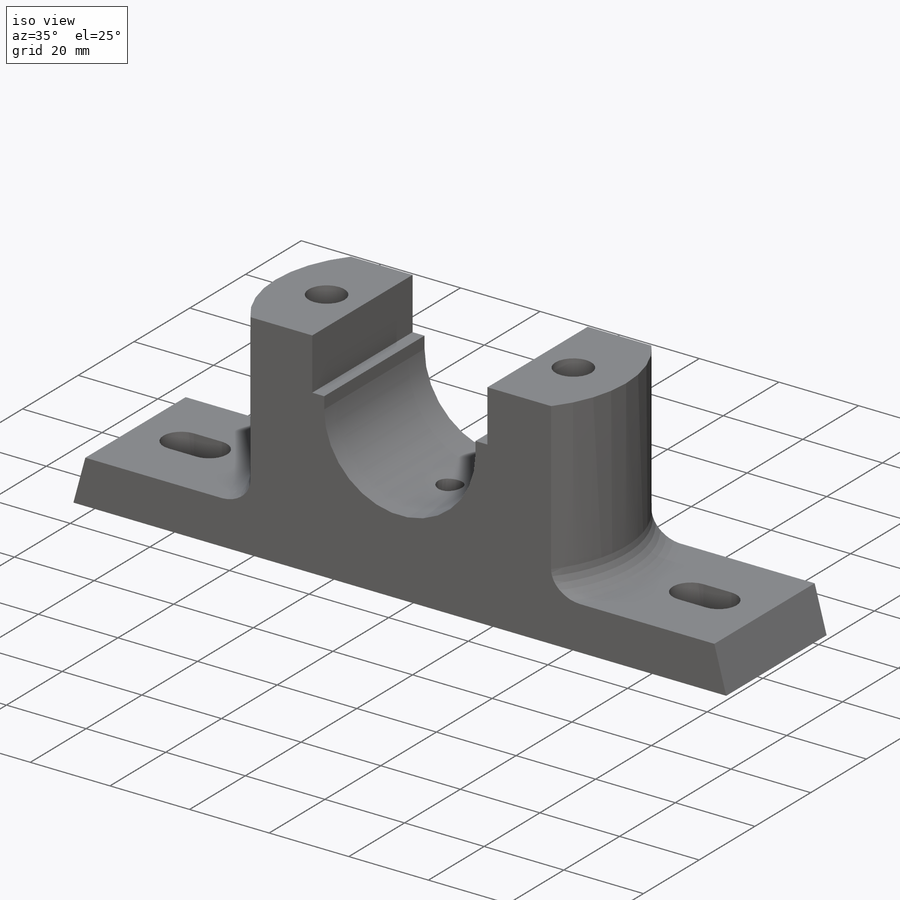
[diagram: iso view]
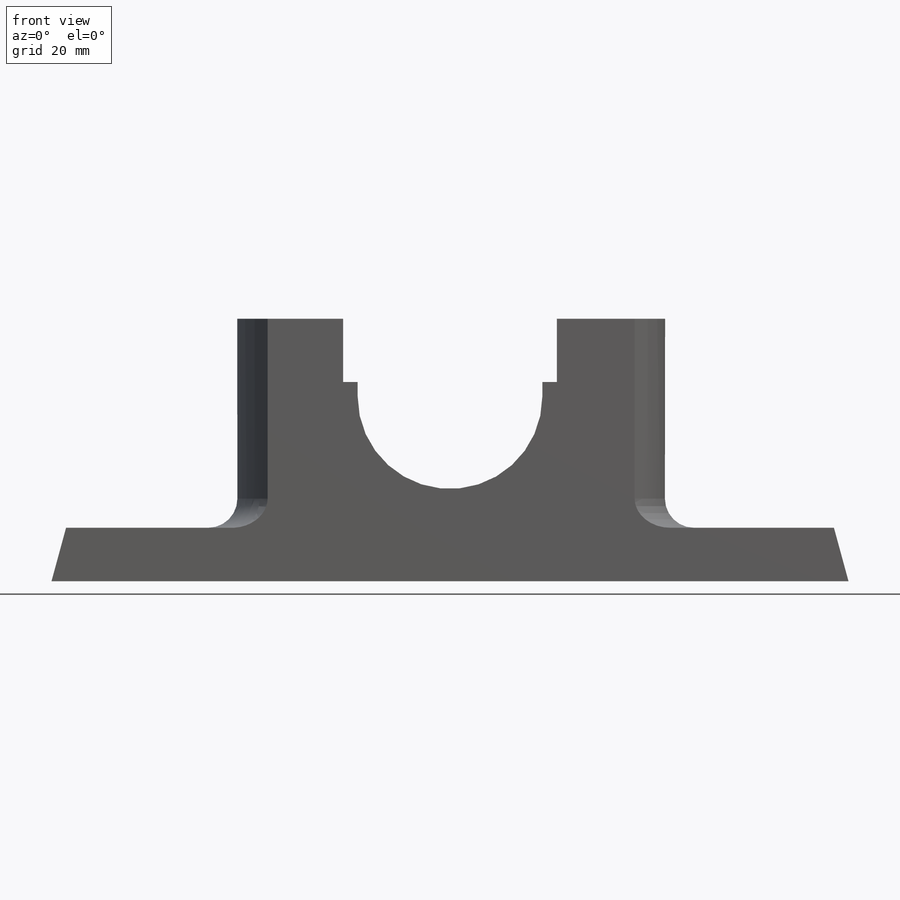
[diagram: front view]
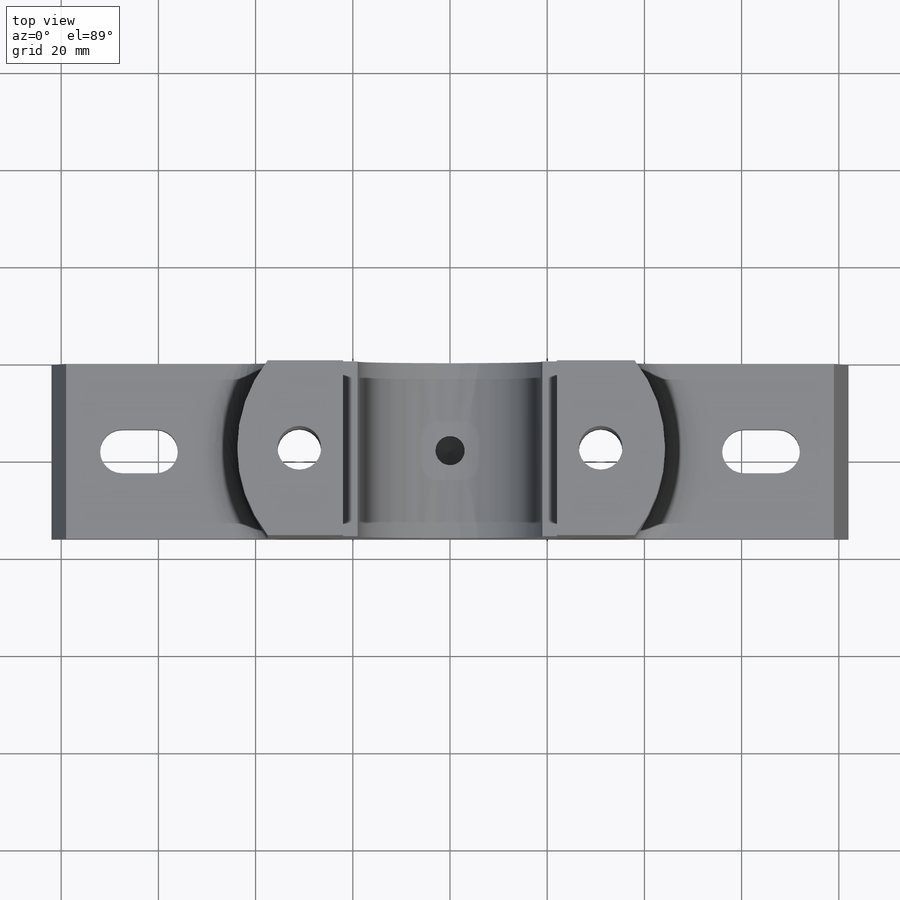
[diagram: top view]
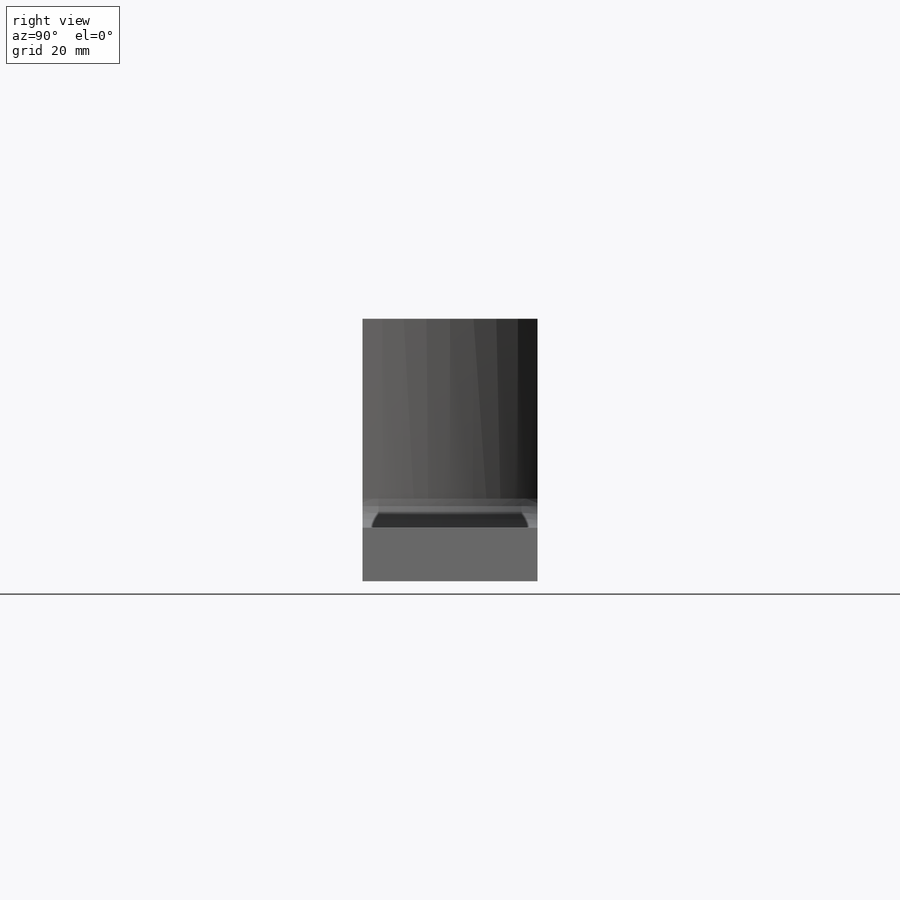
[diagram: right view]
SOLIDWORKS PART (.sldprt)
format: sldprt  version: not decoded by parser v0  size: 334,848 bytes
history: native  units: mm
features: sketch x9, cut_extrude x4, fillet x2, hole x2, mirror x2, material x1, extrude x1 (+12 scaffold rows collapsed)
feature tree (33):
  scaffold x12  (default folders/planes/origin — collapsed)
  material  "Material <not specified>"
  sketch  "Sketch1"  dims[c1.D1=~8.763465mm c1.D8=19.0mm c1.D7=19.0mm c2.D1=90.0deg c3.D1=50.0mm c3.D2=3.0mm c3.D3=43.0mm c3.D4=3.0mm c3.D5=82.0mm c3.D6=11.0mm c3.D7=16.0mm c3.D8=~22.88295mm c3.D9=~22.88295mm c4.D8=16.0mm c4.D7=13.0mm c5.D8=~22.88295mm c5.D2=13.0mm c5.D7=10.0mm c6.D2=13.0mm c6.D7=16.0mm c6.D5=164.0mm c6.D8=16.0mm c6.D9=44.0mm]
  extrude  "Boss-Extrude2"  Depth=36mm
  sketch  "Sketch11"  dims[D1=29.0mm]
  cut_extrude  "Cut-Extrude1"  Depth=43mm
  fillet  "Fillet1"  Radius=6mm
  sketch  "Sketch12"  dims[D1=29.0mm]
  cut_extrude  "Cut-Extrude2"  Depth=43mm
  fillet  "Fillet2"  Radius=6mm
  hole  "Ø6.0mm Dowel Hole1"  Diameter=6mm Depth=6mm
  sketch  "3DSketch1"  dims[D1=0.0mm D2=18.0mm]
  sketch  "Sketch14"  dims[hole-wizard template sketch: 47 standard entries collapsed; hole parameters kept: c15.Hole Depth=6.0mm c15.D3=~14.816244mm c15.Drill Angle=118.0deg]
  hole  "Ø6.0mm Dowel Hole3"  Diameter=9mm Depth=46mm
  sketch  "Sketch20"  dims[D1=18.0mm D2=31.0mm]
  sketch  "Sketch19"  dims[hole-wizard template sketch: 46 standard entries collapsed; hole parameters kept: c15.Hole Dia.=9.0mm c15.Hole Depth=46.0mm c15.D3=~14.816244mm c15.Drill Angle=118.0deg]
  sketch  "Sketch23"  dims[c1.D1=20.0mm c1.D2=20.0mm c1.D3=51.0mm c1.D4=~54.386074mm c2.D4=90.0deg c3.D4=18.0mm]
  cut_extrude  "Cut-Extrude4"  Depth=8mm
  mirror  "Mirror1"
  sketch  "Sketch25"  dims[c1.D1=16.0mm c1.D2=18.0mm c1.D3=15.0mm c1.D4=9.0mm c2.D1=16.0mm]
  cut_extrude  "Cut-Extrude5"  [1 undecoded]
  mirror  "Mirror2"
decode coverage: 17 of 20 modeling features carry decoded parameters
note: ~ marks probable driven/reference dimensions
note: 1 parameter value undecoded
note: suppression state not decoded; provenance and decode notes live in map.json
